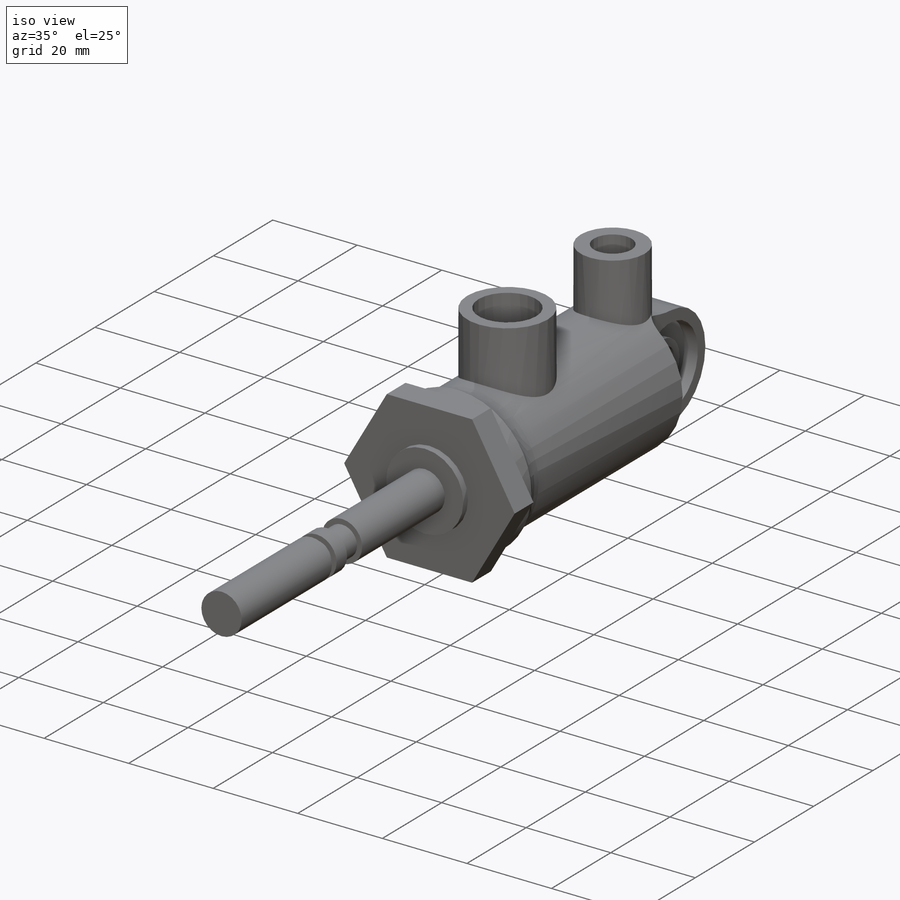
[diagram: iso view]
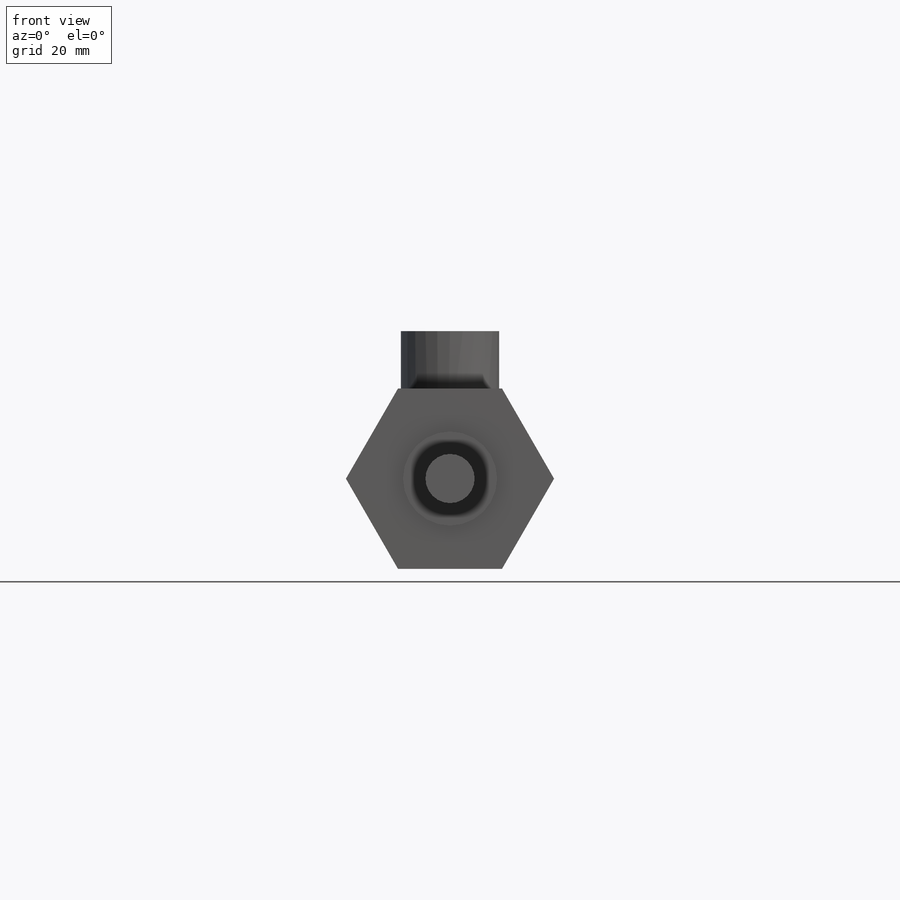
[diagram: front view]
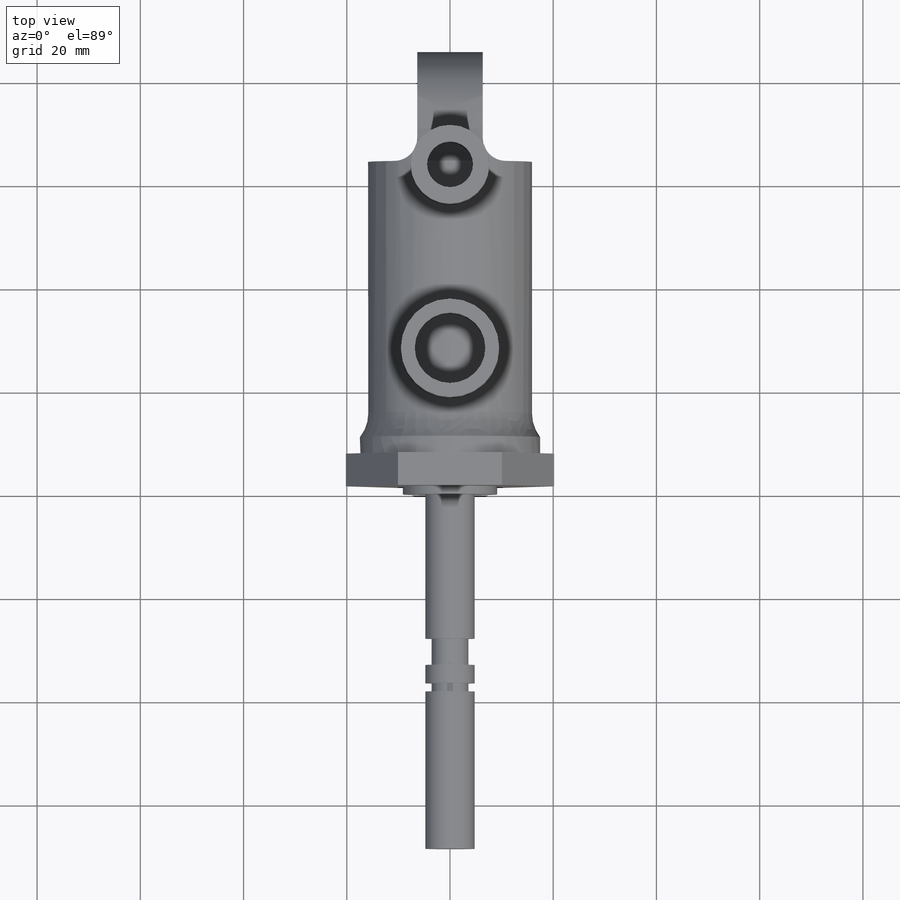
[diagram: top view]
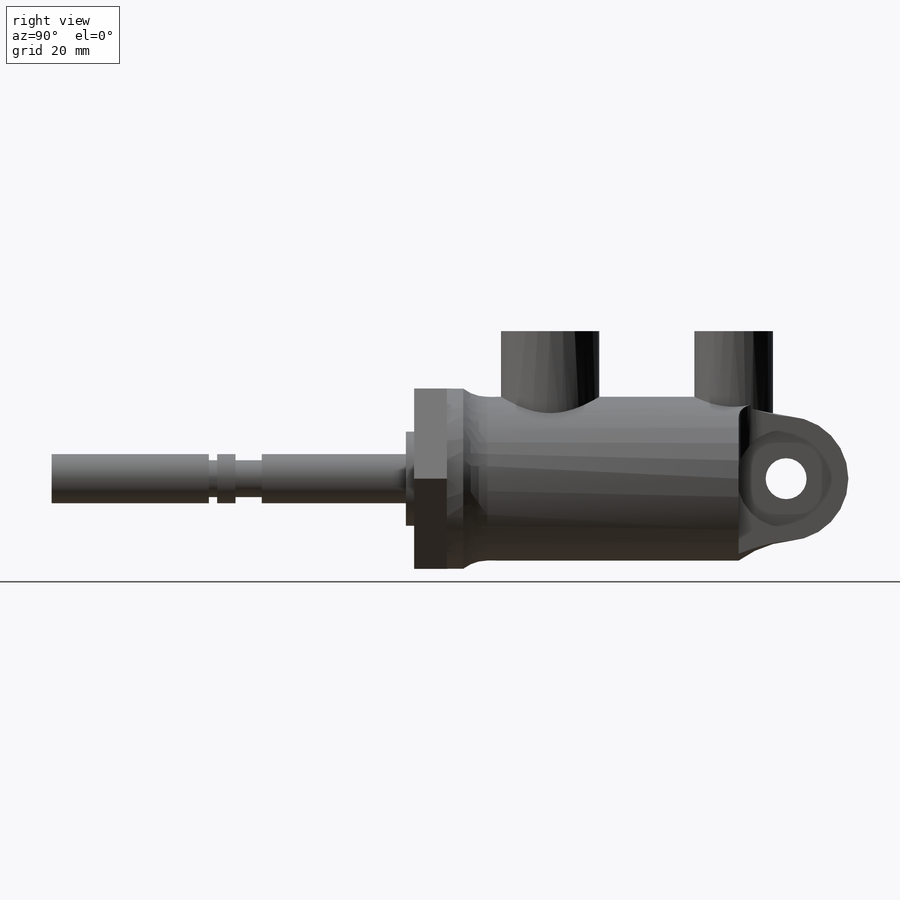
[diagram: right view]
SOLIDWORKS PART (.sldprt)
format: sldprt  version: not decoded by parser v0  size: 387,072 bytes
history: native  units: mm
features: sketch x14, extrude x14, fillet x3, material x1, plane x1 (+10 scaffold rows collapsed)
feature tree (43):
  scaffold x10  (default folders/planes/origin — collapsed)
  material  "Material <not specified>"
  plane  "Mid Plane"
  sketch  "Sketch1"  dims[D1=18.2372mm]
  extrude  "Boss-Extrude1"  Depth=1.5875mm
  sketch  "Sketch2"  dims[D1=34.925mm]
  extrude  "Boss-Extrude2"  Depth=6.35mm
  sketch  "Sketch3"  dims[D1=34.925mm]
  extrude  "Boss-Extrude3"  Depth=3.175mm
  sketch  "Sketch4"  dims[D1=31.75mm]
  extrude  "Boss-Extrude4"  Depth=53.34mm
  sketch  "Sketch6"  dims[D2=7.9375mm D1=73.66mm D3=1.5875mm]
  extrude  "Boss-Extrude5"  Depth=4.7625mm
  sketch  "Sketch7"  dims[D1=19.05mm]
  extrude  "Boss-Extrude6"  Depth=3.175mm
  sketch  "Sketch8"  dims[D1=2.54mm]
  extrude  "Boss-Extrude7"  Depth=6.35mm
  fillet  "Fillet1"  Radius=20.32mm
  fillet  "Fillet2"  Radius=7.62mm
  sketch  "Sketch9"  dims[D1=9.525mm]
  extrude  "Boss-Extrude8"  Depth=27.94mm
  sketch  "Sketch10"  dims[D1=7.1374mm]
  extrude  "Boss-Extrude9"  Depth=5.08mm
  sketch  "Sketch11"
  extrude  "Boss-Extrude10"  Depth=3.556mm
  sketch  "Sketch12"
  extrude  "Boss-Extrude11"  Depth=1.5875mm
  sketch  "Sketch13"
  extrude  "Boss-Extrude12"  Depth=30.48mm
  sketch  "Sketch14"  dims[D1=19.05mm D4=15.24mm D2=27.94mm D3=34.925mm D5=2.6924mm D6=3.175mm]
  extrude  "Boss-Extrude13"  Depth=28.575mm
  sketch  "Sketch15"  dims[D1=15.24mm D3=63.5mm D2=3.175mm]
  extrude  "Boss-Extrude14"  Depth=15.875mm
  fillet  "Fillet3"  Radius=4.4196mm
decode coverage: 28 of 31 modeling features carry decoded parameters
note: suppression state not decoded; provenance and decode notes live in map.json
